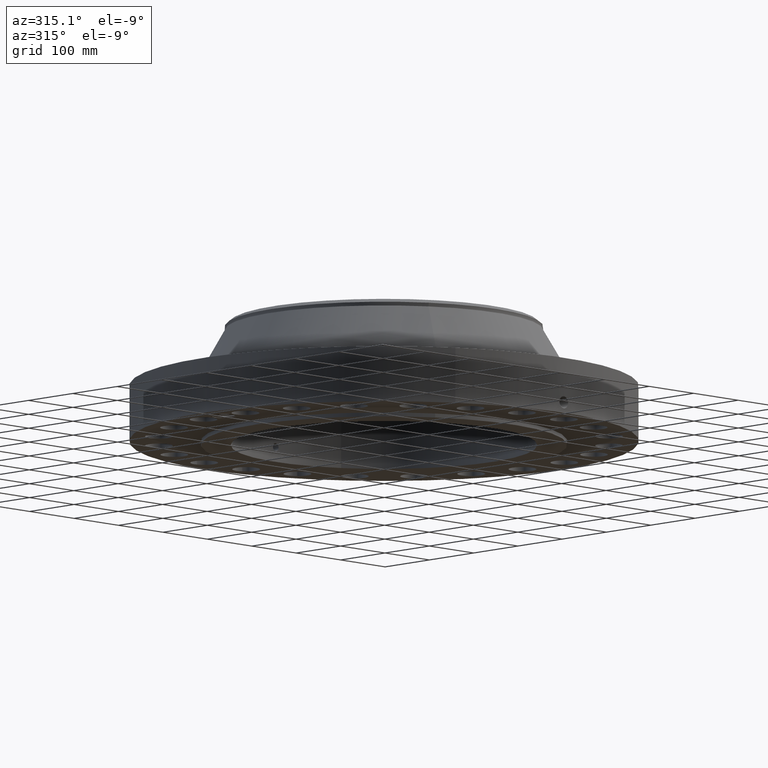
[diagram: clean part render]
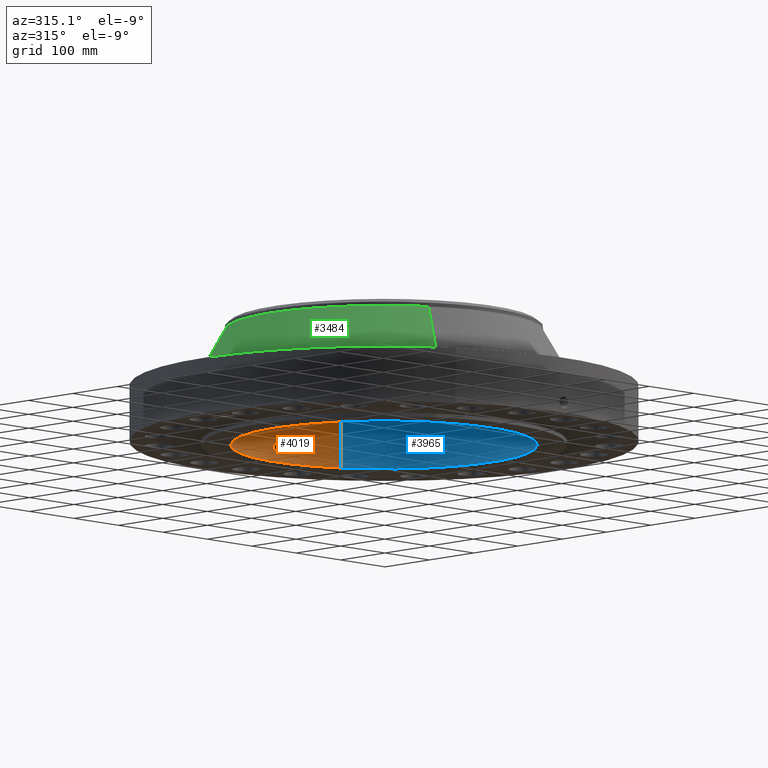
[diagram: same view with three faces highlighted in distinct colors, each labeled with its STEP entity id]
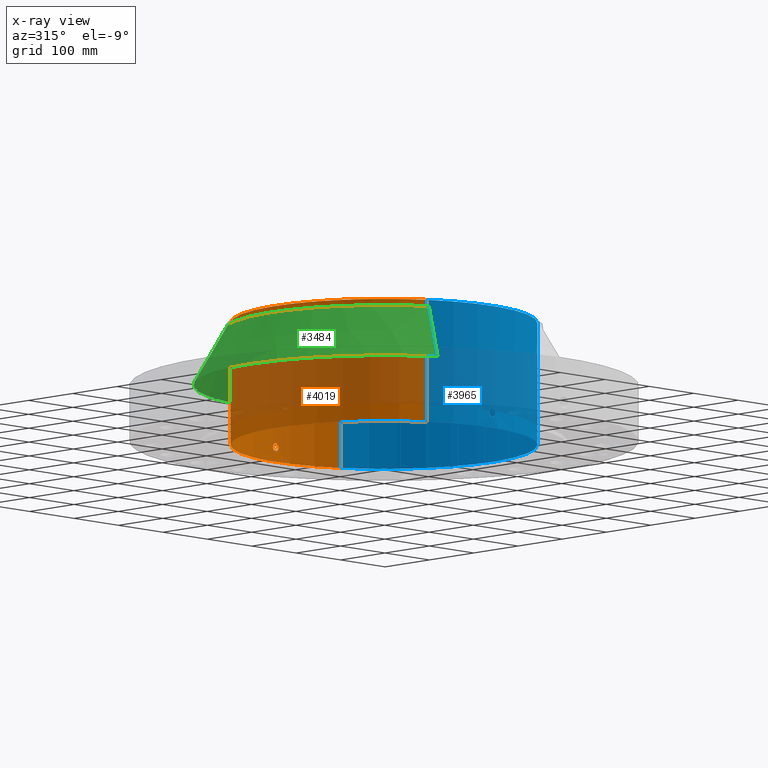
[diagram: x-ray of the same camera — body ghosted, the three highlighted faces saturated]
A machine part, auxiliary view with three faces highlighted in distinct colors.
The next image is the same camera in x-ray (body ghosted, the three faces saturated) — at least one of them is partly hidden behind the body in this view.
Their STEP definitions:

[orange] entity #4019 — the highlighted cylindrical surface (partial cylindrical patch) has radius 244.475 mm, axis along (0, 0, -1).
#3175=AXIS2_PLACEMENT_3D('Circle Axis2P3D',#3173,#3174,$) ;
#3896=AXIS2_PLACEMENT_3D('Cylinder Axis2P3D',#3893,#3894,#3895) ;
#3968=AXIS2_PLACEMENT_3D('Circle Axis2P3D',#3966,#3967,$) ;
#3168=CARTESIAN_POINT('Vertex',(4.61447080908,8.44673215823,-5.9864624194E-014)) ;
#3170=CARTESIAN_POINT('Vertex',(-4.61447080908,-8.44673215823,-5.9864624194E-014)) ;
#3173=CARTESIAN_POINT('Axis2P3D Location',(0.,0.,0.)) ;
#3893=CARTESIAN_POINT('Axis2P3D Location',(0.,0.,3.87500000002)) ;
#3902=CARTESIAN_POINT('Vertex',(4.61447080908,8.44673215823,7.75000000003)) ;
#3904=CARTESIAN_POINT('Vertex',(-4.61447080908,-8.44673215823,7.75000000003)) ;
#3907=CARTESIAN_POINT('Line Origine',(4.61447080908,8.44673215823,3.87500000002)) ;
#3912=CARTESIAN_POINT('Line Origine',(-4.61447080908,-8.44673215823,3.87500000002)) ;
#3966=CARTESIAN_POINT('Axis2P3D Location',(0.,0.,7.75000000003)) ;
#3978=CARTESIAN_POINT('Control Point',(0.219395640473,9.62249918439,1.05985638466)) ;
#3979=CARTESIAN_POINT('Control Point',(0.194442916904,9.62306811339,1.10553203877)) ;
#3980=CARTESIAN_POINT('Control Point',(0.157604791947,9.62382710762,1.14471221515)) ;
#3981=CARTESIAN_POINT('Control Point',(0.111106772733,9.62456527477,1.17324360767)) ;
#3982=CARTESIAN_POINT('Control Point',(0.0336714944015,9.62515257644,1.1958828539)) ;
#3983=CARTESIAN_POINT('Control Point',(-0.0446733581909,9.6249496081,1.18805605975)) ;
#3984=CARTESIAN_POINT('Control Point',(-0.0703037610951,9.62479204385,1.18204303384)) ;
#3985=CARTESIAN_POINT('Control Point',(-0.143960695028,9.62409577409,1.15420952187)) ;
#3986=CARTESIAN_POINT('Control Point',(-0.203248804386,9.62295930717,1.09949219677)) ;
#3987=CARTESIAN_POINT('Control Point',(-0.2322131257,9.62221396751,1.05325109687)) ;
#3988=CARTESIAN_POINT('Control Point',(-0.255841100074,9.62160132498,0.975105117947)) ;
#3989=CARTESIAN_POINT('Control Point',(-0.248281734328,9.62179716896,0.895742423877)) ;
#3990=CARTESIAN_POINT('Control Point',(-0.242047982587,9.62196101179,0.869181609855)) ;
#3991=CARTESIAN_POINT('Control Point',(-0.232314831557,9.62220462327,0.843792036005)) ;
#3992=CARTESIAN_POINT('Control Point',(-0.219395640473,9.62249918439,0.820143615352)) ;
#3993=CARTESIAN_POINT('Vertex',(0.219395640473,9.62249918439,1.05985638466)) ;
#3995=CARTESIAN_POINT('Vertex',(-0.219395640473,9.62249918439,0.820143615352)) ;
#3999=CARTESIAN_POINT('Control Point',(-0.219395640473,9.62249918439,0.820143615352)) ;
#4000=CARTESIAN_POINT('Control Point',(-0.194442916889,9.62306811339,0.774467961208)) ;
#4001=CARTESIAN_POINT('Control Point',(-0.157604791903,9.62382710762,0.735287784808)) ;
#4002=CARTESIAN_POINT('Control Point',(-0.111106772799,9.62456527477,0.706756392361)) ;
#4003=CARTESIAN_POINT('Control Point',(-0.0336714944364,9.62515257644,0.684117146101)) ;
#4004=CARTESIAN_POINT('Control Point',(0.0446733581883,9.6249496081,0.691943940252)) ;
#4005=CARTESIAN_POINT('Control Point',(0.0703037610883,9.62479204385,0.697956966163)) ;
#4006=CARTESIAN_POINT('Control Point',(0.143960695024,9.62409577409,0.725790478133)) ;
#4007=CARTESIAN_POINT('Control Point',(0.203248804385,9.62295930717,0.780507803233)) ;
#4008=CARTESIAN_POINT('Control Point',(0.232213125697,9.62221396751,0.826748903128)) ;
#4009=CARTESIAN_POINT('Control Point',(0.255841100098,9.62160132498,0.904894882136)) ;
#4010=CARTESIAN_POINT('Control Point',(0.248281734313,9.62179716896,0.984257576292)) ;
#4011=CARTESIAN_POINT('Control Point',(0.242047982647,9.62196101179,1.01081839)) ;
#4012=CARTESIAN_POINT('Control Point',(0.232314831597,9.62220462327,1.03620796393)) ;
#4013=CARTESIAN_POINT('Control Point',(0.219395640473,9.62249918439,1.05985638466)) ;
#3174=DIRECTION('Axis2P3D Direction',(0.,0.,-0.0393700787402)) ;
#3894=DIRECTION('Axis2P3D Direction',(0.,0.,-0.0393700787402)) ;
#3895=DIRECTION('Axis2P3D XDirection',(-0.0188750212049,-0.0345504945626,0.)) ;
#3908=DIRECTION('Vector Direction',(0.,0.,-0.0393700787402)) ;
#3913=DIRECTION('Vector Direction',(0.,0.,-0.0393700787402)) ;
#3967=DIRECTION('Axis2P3D Direction',(0.,0.,-0.0393700787402)) ;
#3909=VECTOR('Line Direction',#3908,0.0393700787402) ;
#3914=VECTOR('Line Direction',#3913,0.0393700787402) ;
#3972=ORIENTED_EDGE('',*,*,#3970,.F.) ;
#3973=ORIENTED_EDGE('',*,*,#3916,.T.) ;
#3974=ORIENTED_EDGE('',*,*,#3177,.T.) ;
#3975=ORIENTED_EDGE('',*,*,#3911,.F.) ;
#4016=ORIENTED_EDGE('',*,*,#3997,.F.) ;
#4017=ORIENTED_EDGE('',*,*,#4014,.F.) ;
#4018=FACE_BOUND('',#4015,.T.) ;
#4019=ADVANCED_FACE('PartBody',(#3976,#4018),#3897,.F.) ;
#3977=B_SPLINE_CURVE_WITH_KNOTS('',5,(#3978,#3979,#3980,#3981,#3982,#3983,#3984,#3985,#3986,#3987,#3988,#3989,#3990,#3991,#3992),.UNSPECIFIED.,.F.,.U.,(6,3,3,3,6),(0.,9.34848970769,14.0229242027,23.3729649378,28.2131149335),.UNSPECIFIED.) ;
#3998=B_SPLINE_CURVE_WITH_KNOTS('',5,(#3999,#4000,#4001,#4002,#4003,#4004,#4005,#4006,#4007,#4008,#4009,#4010,#4011,#4012,#4013),.UNSPECIFIED.,.F.,.U.,(6,3,3,3,6),(0.,9.34848971325,14.0229242085,23.3729649438,28.2131149543),.UNSPECIFIED.) ;
#3176=CIRCLE('generated circle',#3175,9.62500000004) ;
#3969=CIRCLE('generated circle',#3968,9.62500000004) ;
#3897=CYLINDRICAL_SURFACE('generated cylinder',#3896,9.62500000004) ;
#3177=EDGE_CURVE('',#3171,#3169,#3176,.T.) ;
#3911=EDGE_CURVE('',#3903,#3169,#3910,.T.) ;
#3916=EDGE_CURVE('',#3905,#3171,#3915,.T.) ;
#3970=EDGE_CURVE('',#3905,#3903,#3969,.T.) ;
#3997=EDGE_CURVE('',#3994,#3996,#3977,.T.) ;
#4014=EDGE_CURVE('',#3996,#3994,#3998,.T.) ;
#3971=EDGE_LOOP('',(#3972,#3973,#3974,#3975)) ;
#4015=EDGE_LOOP('',(#4016,#4017)) ;
#3976=FACE_OUTER_BOUND('',#3971,.T.) ;
#3910=LINE('Line',#3907,#3909) ;
#3915=LINE('Line',#3912,#3914) ;
#3169=VERTEX_POINT('',#3168) ;
#3171=VERTEX_POINT('',#3170) ;
#3903=VERTEX_POINT('',#3902) ;
#3905=VERTEX_POINT('',#3904) ;
#3994=VERTEX_POINT('',#3993) ;
#3996=VERTEX_POINT('',#3995) ;

[blue] entity #3965 — the highlighted cylindrical surface (partial cylindrical patch) has radius 244.475 mm, axis along (0, 0, -1).
#3166=AXIS2_PLACEMENT_3D('Circle Axis2P3D',#3164,#3165,$) ;
#3896=AXIS2_PLACEMENT_3D('Cylinder Axis2P3D',#3893,#3894,#3895) ;
#3900=AXIS2_PLACEMENT_3D('Circle Axis2P3D',#3898,#3899,$) ;
#3164=CARTESIAN_POINT('Axis2P3D Location',(0.,0.,0.)) ;
#3168=CARTESIAN_POINT('Vertex',(4.61447080908,8.44673215823,-5.9864624194E-014)) ;
#3170=CARTESIAN_POINT('Vertex',(-4.61447080908,-8.44673215823,-5.9864624194E-014)) ;
#3893=CARTESIAN_POINT('Axis2P3D Location',(0.,0.,3.87500000002)) ;
#3898=CARTESIAN_POINT('Axis2P3D Location',(0.,0.,7.75000000003)) ;
#3902=CARTESIAN_POINT('Vertex',(4.61447080908,8.44673215823,7.75000000003)) ;
#3904=CARTESIAN_POINT('Vertex',(-4.61447080908,-8.44673215823,7.75000000003)) ;
#3907=CARTESIAN_POINT('Line Origine',(4.61447080908,8.44673215823,3.87500000002)) ;
#3912=CARTESIAN_POINT('Line Origine',(-4.61447080908,-8.44673215823,3.87500000002)) ;
#3924=CARTESIAN_POINT('Control Point',(0.219395640473,-9.62249918439,0.820143615352)) ;
#3925=CARTESIAN_POINT('Control Point',(0.194442916884,-9.62306811339,0.774467961198)) ;
#3926=CARTESIAN_POINT('Control Point',(0.157604791886,-9.62382710762,0.73528778479)) ;
#3927=CARTESIAN_POINT('Control Point',(0.111106772818,-9.62456527477,0.706756392364)) ;
#3928=CARTESIAN_POINT('Control Point',(0.0336714944328,-9.62515257644,0.684117146096)) ;
#3929=CARTESIAN_POINT('Control Point',(-0.0446733582137,-9.6249496081,0.691943940255)) ;
#3930=CARTESIAN_POINT('Control Point',(-0.0703037610756,-9.62479204385,0.697956966158)) ;
#3931=CARTESIAN_POINT('Control Point',(-0.143960694982,-9.62409577409,0.725790478115)) ;
#3932=CARTESIAN_POINT('Control Point',(-0.203248804325,-9.62295930718,0.780507803178)) ;
#3933=CARTESIAN_POINT('Control Point',(-0.232213125724,-9.62221396751,0.826748903216)) ;
#3934=CARTESIAN_POINT('Control Point',(-0.255841100089,-9.62160132498,0.904894882163)) ;
#3935=CARTESIAN_POINT('Control Point',(-0.248281734316,-9.62179716896,0.984257576255)) ;
#3936=CARTESIAN_POINT('Control Point',(-0.242047982632,-9.62196101179,1.01081839004)) ;
#3937=CARTESIAN_POINT('Control Point',(-0.232314831586,-9.62220462327,1.03620796395)) ;
#3938=CARTESIAN_POINT('Control Point',(-0.219395640473,-9.62249918439,1.05985638466)) ;
#3939=CARTESIAN_POINT('Vertex',(0.219395640473,-9.62249918439,0.820143615352)) ;
#3941=CARTESIAN_POINT('Vertex',(-0.219395640473,-9.62249918439,1.05985638466)) ;
#3945=CARTESIAN_POINT('Control Point',(-0.219395640473,-9.62249918439,1.05985638466)) ;
#3946=CARTESIAN_POINT('Control Point',(-0.194442916877,-9.62306811339,1.10553203882)) ;
#3947=CARTESIAN_POINT('Control Point',(-0.157604791866,-9.62382710762,1.14471221524)) ;
#3948=CARTESIAN_POINT('Control Point',(-0.111106772853,-9.62456527477,1.17324360763)) ;
#3949=CARTESIAN_POINT('Control Point',(-0.0336714944635,-9.62515257644,1.19588285391)) ;
#3950=CARTESIAN_POINT('Control Point',(0.0446733581884,-9.6249496081,1.18805605976)) ;
#3951=CARTESIAN_POINT('Control Point',(0.0703037610864,-9.62479204385,1.18204303384)) ;
#3952=CARTESIAN_POINT('Control Point',(0.143960694961,-9.62409577409,1.1542095219)) ;
#3953=CARTESIAN_POINT('Control Point',(0.203248804283,-9.62295930718,1.09949219687)) ;
#3954=CARTESIAN_POINT('Control Point',(0.232213125737,-9.62221396751,1.05325109675)) ;
#3955=CARTESIAN_POINT('Control Point',(0.255841100079,-9.62160132498,0.975105117845)) ;
#3956=CARTESIAN_POINT('Control Point',(0.248281734321,-9.62179716896,0.895742423797)) ;
#3957=CARTESIAN_POINT('Control Point',(0.242047982618,-9.62196101179,0.869181609935)) ;
#3958=CARTESIAN_POINT('Control Point',(0.232314831577,-9.62220462327,0.843792036042)) ;
#3959=CARTESIAN_POINT('Control Point',(0.219395640473,-9.62249918439,0.820143615352)) ;
#3165=DIRECTION('Axis2P3D Direction',(0.,0.,-0.0393700787402)) ;
#3894=DIRECTION('Axis2P3D Direction',(0.,0.,-0.0393700787402)) ;
#3895=DIRECTION('Axis2P3D XDirection',(-0.0188750212049,-0.0345504945626,0.)) ;
#3899=DIRECTION('Axis2P3D Direction',(0.,0.,-0.0393700787402)) ;
#3908=DIRECTION('Vector Direction',(0.,0.,-0.0393700787402)) ;
#3913=DIRECTION('Vector Direction',(0.,0.,-0.0393700787402)) ;
#3909=VECTOR('Line Direction',#3908,0.0393700787402) ;
#3914=VECTOR('Line Direction',#3913,0.0393700787402) ;
#3918=ORIENTED_EDGE('',*,*,#3906,.F.) ;
#3919=ORIENTED_EDGE('',*,*,#3911,.T.) ;
#3920=ORIENTED_EDGE('',*,*,#3172,.T.) ;
#3921=ORIENTED_EDGE('',*,*,#3916,.F.) ;
#3962=ORIENTED_EDGE('',*,*,#3943,.F.) ;
#3963=ORIENTED_EDGE('',*,*,#3960,.F.) ;
#3964=FACE_BOUND('',#3961,.T.) ;
#3965=ADVANCED_FACE('PartBody',(#3922,#3964),#3897,.F.) ;
#3923=B_SPLINE_CURVE_WITH_KNOTS('',5,(#3924,#3925,#3926,#3927,#3928,#3929,#3930,#3931,#3932,#3933,#3934,#3935,#3936,#3937,#3938),.UNSPECIFIED.,.F.,.U.,(6,3,3,3,6),(0.,9.3484897154,14.0229242124,23.3729649401,28.2131149468),.UNSPECIFIED.) ;
#3944=B_SPLINE_CURVE_WITH_KNOTS('',5,(#3945,#3946,#3947,#3948,#3949,#3950,#3951,#3952,#3953,#3954,#3955,#3956,#3957,#3958,#3959),.UNSPECIFIED.,.F.,.U.,(6,3,3,3,6),(0.,9.34848971801,14.0229242133,23.3729649367,28.21311494),.UNSPECIFIED.) ;
#3167=CIRCLE('generated circle',#3166,9.62500000004) ;
#3901=CIRCLE('generated circle',#3900,9.62500000004) ;
#3897=CYLINDRICAL_SURFACE('generated cylinder',#3896,9.62500000004) ;
#3172=EDGE_CURVE('',#3169,#3171,#3167,.T.) ;
#3906=EDGE_CURVE('',#3903,#3905,#3901,.T.) ;
#3911=EDGE_CURVE('',#3903,#3169,#3910,.T.) ;
#3916=EDGE_CURVE('',#3905,#3171,#3915,.T.) ;
#3943=EDGE_CURVE('',#3940,#3942,#3923,.T.) ;
#3960=EDGE_CURVE('',#3942,#3940,#3944,.T.) ;
#3917=EDGE_LOOP('',(#3918,#3919,#3920,#3921)) ;
#3961=EDGE_LOOP('',(#3962,#3963)) ;
#3922=FACE_OUTER_BOUND('',#3917,.T.) ;
#3910=LINE('Line',#3907,#3909) ;
#3915=LINE('Line',#3912,#3914) ;
#3169=VERTEX_POINT('',#3168) ;
#3171=VERTEX_POINT('',#3170) ;
#3903=VERTEX_POINT('',#3902) ;
#3905=VERTEX_POINT('',#3904) ;
#3940=VERTEX_POINT('',#3939) ;
#3942=VERTEX_POINT('',#3941) ;

[green] entity #3484 — the highlighted conical surface has half-angle 29.49 deg.
#2852=AXIS2_PLACEMENT_3D('Circle Axis2P3D',#2850,#2851,$) ;
#3445=AXIS2_PLACEMENT_3D('Cone Axis2P3D',#3442,#3443,#3444) ;
#3475=AXIS2_PLACEMENT_3D('Circle Axis2P3D',#3473,#3474,$) ;
#2828=CARTESIAN_POINT('Vertex',(5.73658691231,10.5007519075,3.81092769751)) ;
#2835=CARTESIAN_POINT('Vertex',(-5.73658691231,-10.5007519075,3.81092769751)) ;
#2850=CARTESIAN_POINT('Axis2P3D Location',(0.,0.,3.81092769751)) ;
#3442=CARTESIAN_POINT('Axis2P3D Location',(0.,0.,7.28645135497)) ;
#3447=CARTESIAN_POINT('Line Origine',(5.26542114919,9.63828876323,5.54868952624)) ;
#3451=CARTESIAN_POINT('Vertex',(4.79425538606,8.77582561894,7.28645135497)) ;
#3458=CARTESIAN_POINT('Vertex',(-4.79425538606,-8.77582561894,7.28645135497)) ;
#3461=CARTESIAN_POINT('Line Origine',(-5.26542114919,-9.63828876323,5.54868952624)) ;
#3473=CARTESIAN_POINT('Axis2P3D Location',(0.,0.,7.28645135497)) ;
#2851=DIRECTION('Axis2P3D Direction',(0.,0.,-0.0393700787402)) ;
#3443=DIRECTION('Axis2P3D Direction',(0.,0.,-0.0393700787402)) ;
#3444=DIRECTION('Axis2P3D XDirection',(-0.0188750212049,-0.0345504945626,0.)) ;
#3448=DIRECTION('Vector Direction',(0.00929159135356,0.0170081438879,-0.034269410144)) ;
#3462=DIRECTION('Vector Direction',(-0.00929159135356,-0.0170081438879,-0.034269410144)) ;
#3474=DIRECTION('Axis2P3D Direction',(0.,0.,-0.0393700787402)) ;
#3449=VECTOR('Line Direction',#3448,0.0393700787402) ;
#3463=VECTOR('Line Direction',#3462,0.0393700787402) ;
#3479=ORIENTED_EDGE('',*,*,#2854,.F.) ;
#3480=ORIENTED_EDGE('',*,*,#3465,.T.) ;
#3481=ORIENTED_EDGE('',*,*,#3477,.T.) ;
#3482=ORIENTED_EDGE('',*,*,#3453,.F.) ;
#3484=ADVANCED_FACE('PartBody',(#3483),#3446,.T.) ;
#2853=CIRCLE('generated circle',#2852,11.965543031) ;
#3476=CIRCLE('generated circle',#3475,10.) ;
#3446=CONICAL_SURFACE('Cone',#3445,10.,0.514694771037) ;
#2854=EDGE_CURVE('',#2836,#2829,#2853,.T.) ;
#3453=EDGE_CURVE('',#2829,#3452,#3450,.F.) ;
#3465=EDGE_CURVE('',#2836,#3459,#3464,.F.) ;
#3477=EDGE_CURVE('',#3459,#3452,#3476,.T.) ;
#3478=EDGE_LOOP('',(#3479,#3480,#3481,#3482)) ;
#3483=FACE_OUTER_BOUND('',#3478,.T.) ;
#3450=LINE('Line',#3447,#3449) ;
#3464=LINE('Line',#3461,#3463) ;
#2829=VERTEX_POINT('',#2828) ;
#2836=VERTEX_POINT('',#2835) ;
#3452=VERTEX_POINT('',#3451) ;
#3459=VERTEX_POINT('',#3458) ;